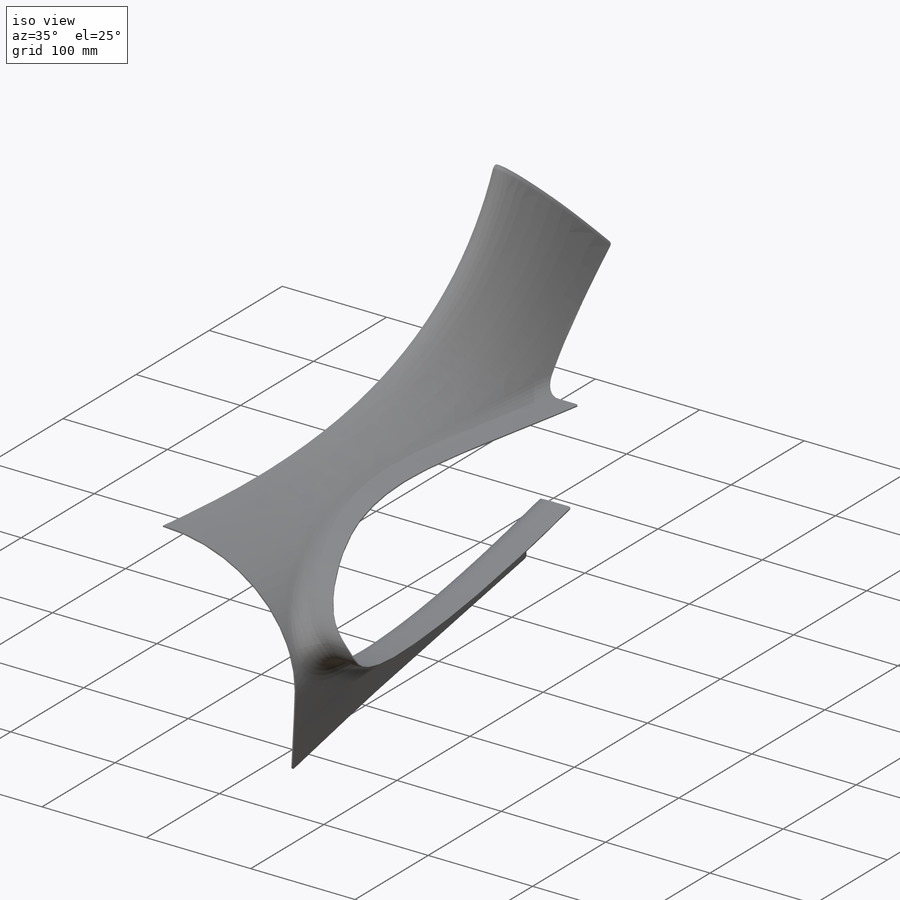
[diagram: iso view]
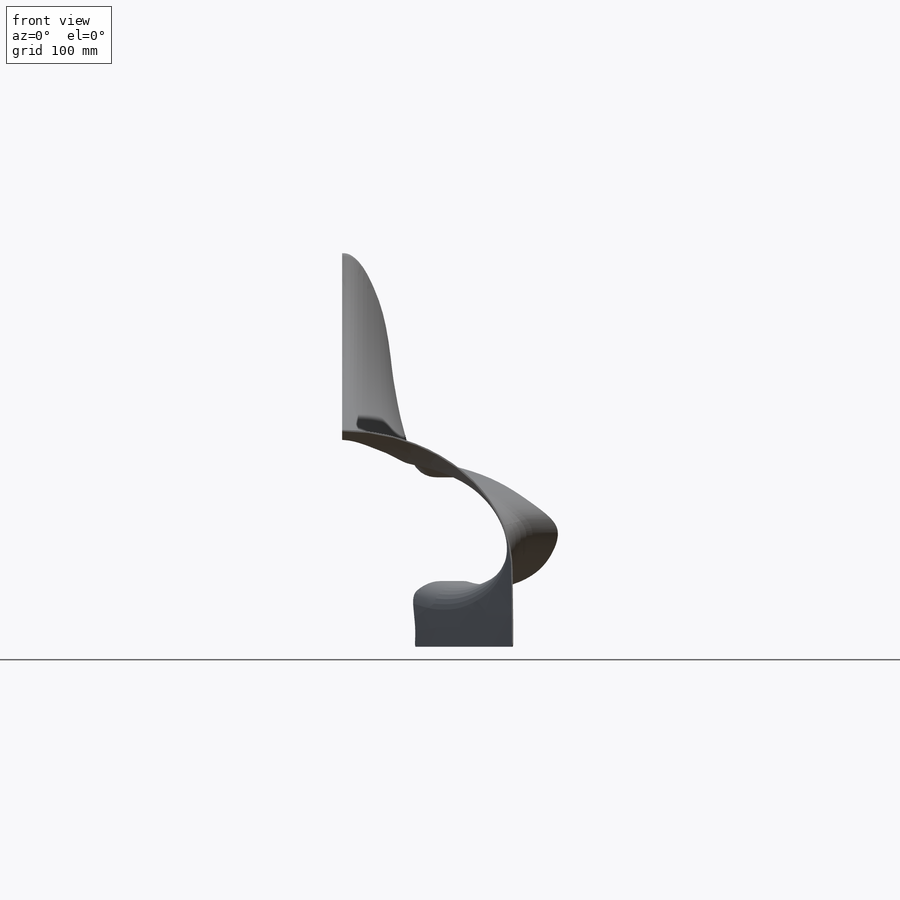
[diagram: front view]
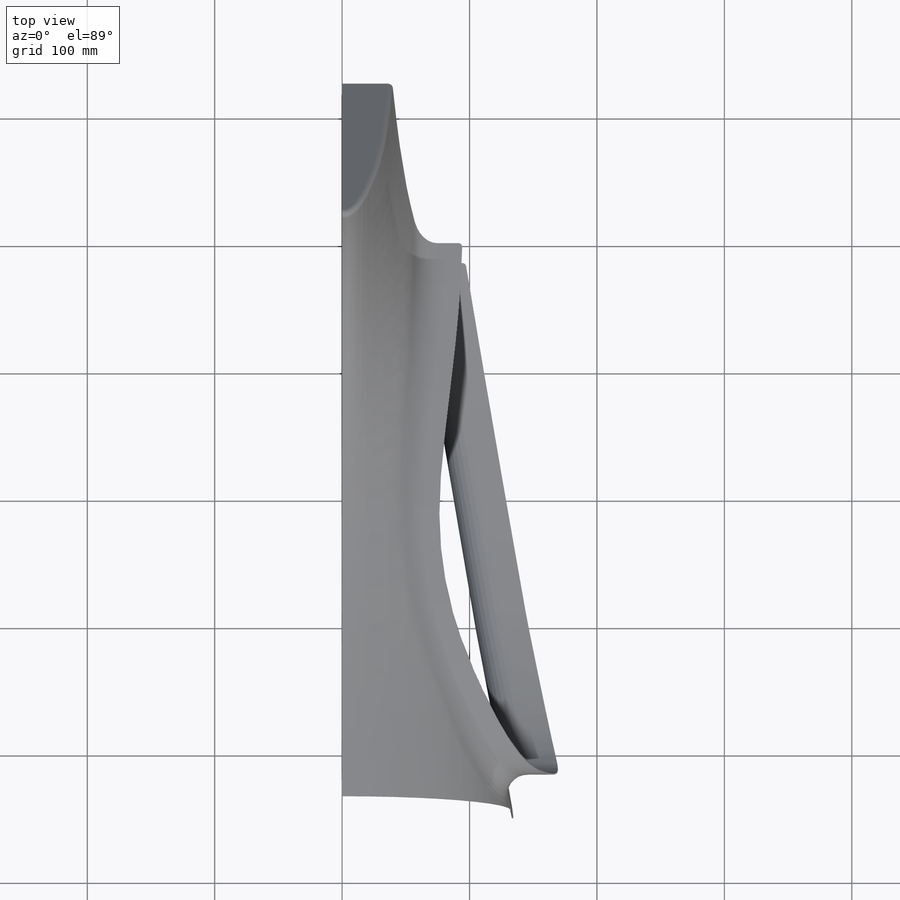
[diagram: top view]
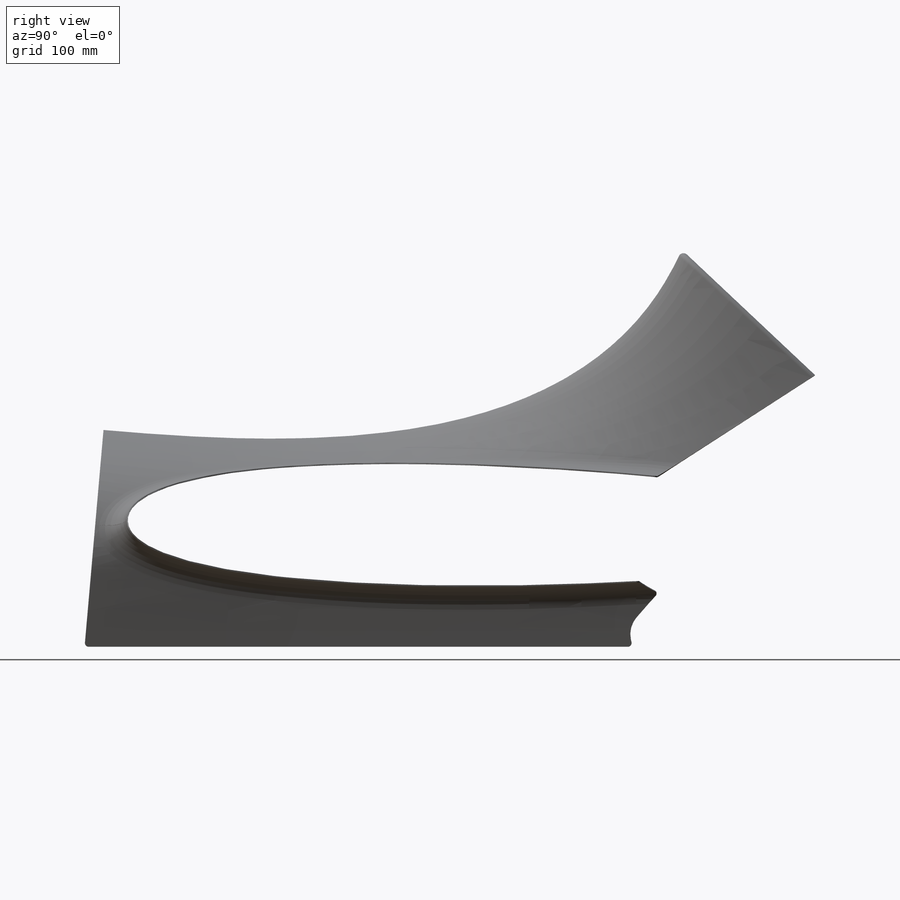
[diagram: right view]
SOLIDWORKS PART (.sldprt)
format: sldprt  version: not decoded by parser v0  size: 1,800,192 bytes
history: native  units: mm
features: sketch x15, plane x9, surface_op x5, fillet x4, material x1, cut_extrude x1 (+9 scaffold rows collapsed)
feature tree (44):
  scaffold x9  (default folders/planes/origin — collapsed)
  material  "Material <nicht festgelegt>"
  plane  "Ebene vorne"
  plane  "Ebene oben"
  plane  "Ebene rechts"
  sketch  "Skizze1"  dims[D1=19.635mm D2=20.0mm]
  plane  "Ebene1"  Offset=477.620725mm
  plane  "Ebene2"  Offset=20mm
  sketch  "Skizze3"  dims[c1.D1=~49.456691mm c1.D2=~26.09443mm c1.D3=~34.483357mm c1.D4=~105.368713mm c1.D5=~105.376102mm c1.D6=~107.353763mm c1.D7=~133.321329mm c1.D8=~26.09443mm c1.D9=~34.483357mm c1.D10=~105.368713mm c1.D11=~105.376102mm c1.D12=~107.353763mm c1.D13=~133.321329mm c2.D2=~26.09443mm c2.D3=~105.368713mm c2.D4=~34.483357mm c2.D5=~105.376102mm c2.D6=~107.353763mm c2.D7=~133.321329mm c2.D8=~26.09443mm c2.D9=~34.483357mm c2.D10=~105.368713mm c2.D11=~105.376102mm c2.D12=~107.353763mm c2.D13=~133.321329mm c3.D4=~34.483357mm c3.D5=~105.376102mm c3.D3=~0.986407mm c4.D4=~0.986407mm]
  plane  "Ebene3"
  sketch  "Skizze2"  dims[D1=~1865.372407mm D2=~2321.740915mm D3=~457.620723mm D4=~626.773645mm D5=~772.454473mm D6=~1850.573445mm D7=~2462.344743mm D8=~2500.646731mm D9=~604.166741mm]
  sketch  "3D-Skizze1"  dims[D1=0.0mm]
  sketch  "Skizze4"  dims[D1=0.0mm D2=~0.294596mm D3=~0.294596mm]
  sketch  "3D-Skizze2"
  sketch  "Skizze6"  dims[c1.D1=5.0mm c1.D2=~1850.573444mm c1.D3=~1874.953752mm c1.D4=~2290.152994mm c1.D5=~2312.299989mm c1.D6=~2319.633125mm c1.D7=~2321.740908mm c1.D8=~2500.646731mm c1.D9=~2726.574538mm c1.D10=~384.78334mm c1.D11=~509.386325mm c1.D12=~589.415493mm c1.D13=~604.166741mm c1.D14=~736.288909mm c1.D15=~767.572723mm c1.D16=~772.454479mm c1.D17=~1468.581936mm c2.D10=~384.78334mm c2.D13=~604.166741mm c2.D3=~316.890093mm c3.D3=~11.843086deg c3.D14=~16.105526mm c4.D14=~102.078044deg c4.D15=~337.404216mm c5.D15=33.0deg c5.D16=~29.130379mm c6.D16=~102.078044deg c6.D18=~227.292132mm c7.D18=~11.843086deg c7.D19=~337.404216mm c8.D19=40.0deg c8.D20=10.0mm c8.D21=10.0mm c8.D2=0.41mm]
  plane  "Ebene4"  Offset=170mm
  plane  "Ebene5"  Offset=170mm
  sketch  "Skizze7"  dims[D1=0.0mm D2=0.0mm]
  sketch  "Skizze8"  dims[D1=0.0mm D2=0.0mm]
  surface_op  "Oberfläche-Linear austragen1"
  plane  "Ebene6"
  sketch  "Skizze10"
  fillet  "R 20"  Radius=20mm
  fillet  "R 20 (1)"  Radius=20mm
  fillet  "R 3"  Radius=3mm
  sketch  "Skizze18"  dims[D2=20.0mm D3=12.5mm D1=23.0mm D4=10.0mm]
  surface_op  "Oberfläche-Trimmen12"
  sketch  "Skizze19"  dims[D1=0.0mm]
  surface_op  "Oberfläche-Trimmen13"
  sketch  "3D-Skizze4"
  surface_op  "Oberfläche-Trimmen14"
  sketch  "3D-Skizze5"
  surface_op  "Oberfläche-Trimmen15"
  fillet  "R 3 (1)"  Radius=3mm
  sketch  "Skizze20"
  cut_extrude  "Halbieren"  [1 undecoded]
decode coverage: 14 of 25 modeling features carry decoded parameters
note: ~ marks probable driven/reference dimensions
note: 1 parameter value undecoded
note: suppression state not decoded; provenance and decode notes live in map.json
